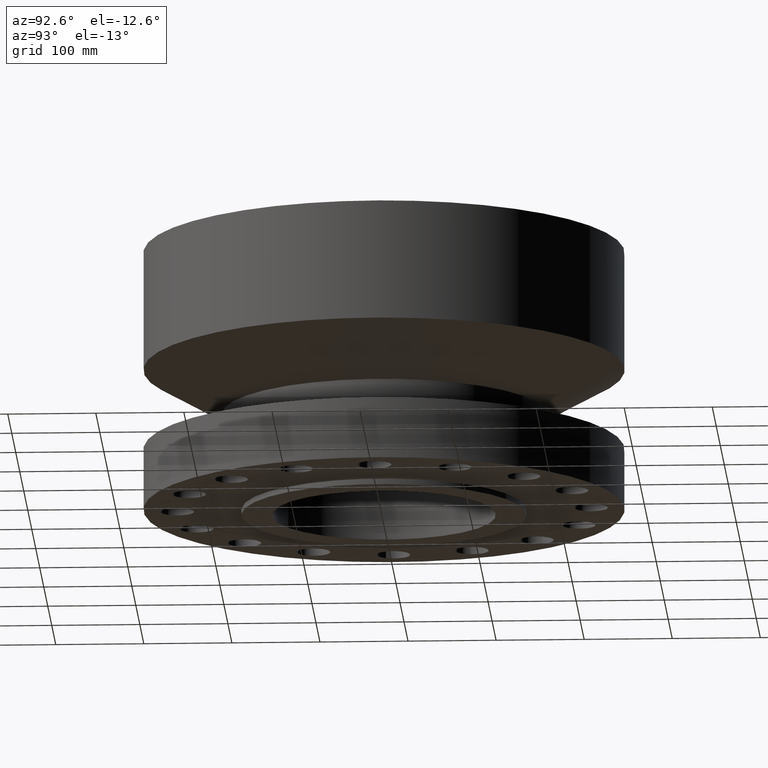
[diagram: clean part render]
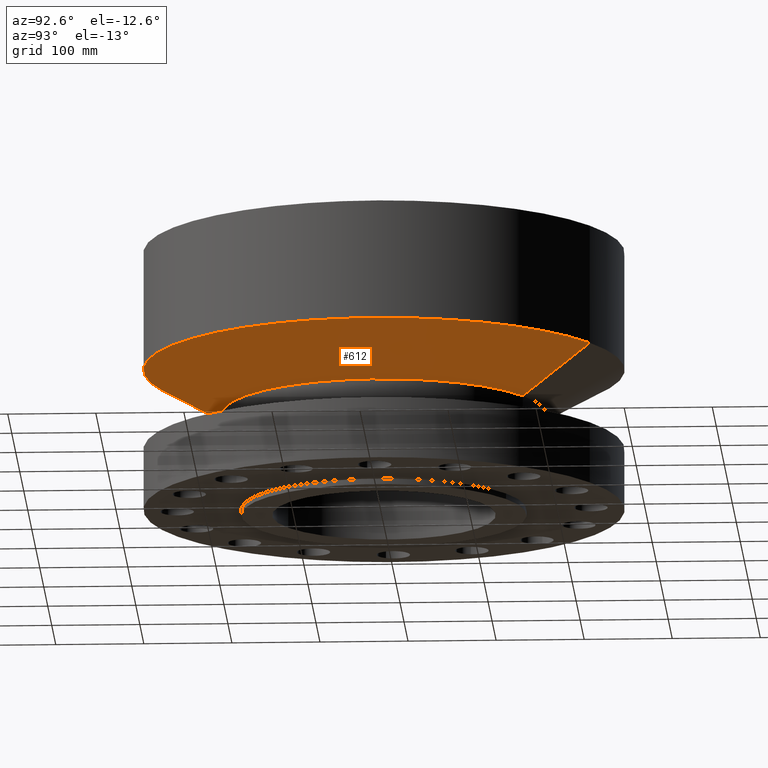
[diagram: same view with one face highlighted and labeled with its STEP entity id]
A machine part, auxiliary view. The second image highlights one B-rep face of the part: STEP entity #612.
In plain terms, the highlighted conical surface has half-angle 60 deg.
Its self-contained STEP definition (entity closure, byte-faithful):
#553=AXIS2_PLACEMENT_3D('Circle Axis2P3D',#551,#552,$) ;
#585=AXIS2_PLACEMENT_3D('Cone Axis2P3D',#582,#583,#584) ;
#596=AXIS2_PLACEMENT_3D('Circle Axis2P3D',#594,#595,$) ;
#548=CARTESIAN_POINT('Vertex',(3.47583515489,6.36247357373,4.37000000002)) ;
#551=CARTESIAN_POINT('Axis2P3D Location',(0.,0.,4.37000000002)) ;
#555=CARTESIAN_POINT('Vertex',(-3.47583515489,-6.36247357373,4.37000000002)) ;
#582=CARTESIAN_POINT('Axis2P3D Location',(0.,0.,4.37000000002)) ;
#587=CARTESIAN_POINT('Line Origine',(4.31482984746,7.89824305704,5.3803629711)) ;
#591=CARTESIAN_POINT('Vertex',(5.15382454002,9.43401254036,6.39072594219)) ;
#594=CARTESIAN_POINT('Axis2P3D Location',(0.,0.,6.39072594219)) ;
#598=CARTESIAN_POINT('Vertex',(-5.15382454002,-9.43401254036,6.39072594219)) ;
#601=CARTESIAN_POINT('Line Origine',(-4.31482984746,-7.89824305704,5.3803629711)) ;
#552=DIRECTION('Axis2P3D Direction',(0.,0.,-0.0393700787402)) ;
#583=DIRECTION('Axis2P3D Direction',(-0.,-0.,0.0393700787402)) ;
#584=DIRECTION('Axis2P3D XDirection',(0.0188750212049,0.0345504945626,0.)) ;
#588=DIRECTION('Vector Direction',(0.0163462478604,0.0299216060045,0.0196850393701)) ;
#595=DIRECTION('Axis2P3D Direction',(-0.,0.,0.0393700787402)) ;
#602=DIRECTION('Vector Direction',(-0.0163462478604,-0.0299216060045,0.0196850393701)) ;
#589=VECTOR('Line Direction',#588,0.0393700787402) ;
#603=VECTOR('Line Direction',#602,0.0393700787402) ;
#607=ORIENTED_EDGE('',*,*,#557,.F.) ;
#608=ORIENTED_EDGE('',*,*,#593,.T.) ;
#609=ORIENTED_EDGE('',*,*,#600,.T.) ;
#610=ORIENTED_EDGE('',*,*,#605,.F.) ;
#612=ADVANCED_FACE('PartBody',(#611),#586,.T.) ;
#554=CIRCLE('generated circle',#553,7.25000000003) ;
#597=CIRCLE('generated circle',#596,10.75) ;
#586=CONICAL_SURFACE('Cone',#585,7.25000000003,1.0471975512) ;
#557=EDGE_CURVE('',#549,#556,#554,.T.) ;
#593=EDGE_CURVE('',#549,#592,#590,.T.) ;
#600=EDGE_CURVE('',#592,#599,#597,.F.) ;
#605=EDGE_CURVE('',#556,#599,#604,.T.) ;
#606=EDGE_LOOP('',(#607,#608,#609,#610)) ;
#611=FACE_OUTER_BOUND('',#606,.T.) ;
#590=LINE('Line',#587,#589) ;
#604=LINE('Line',#601,#603) ;
#549=VERTEX_POINT('',#548) ;
#556=VERTEX_POINT('',#555) ;
#592=VERTEX_POINT('',#591) ;
#599=VERTEX_POINT('',#598) ;